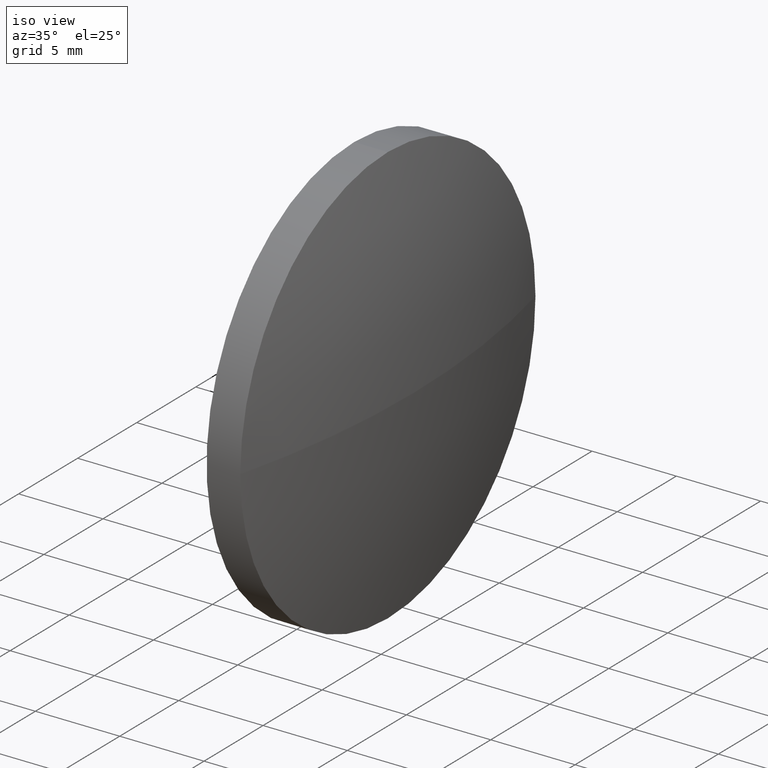
[diagram: clean part render]
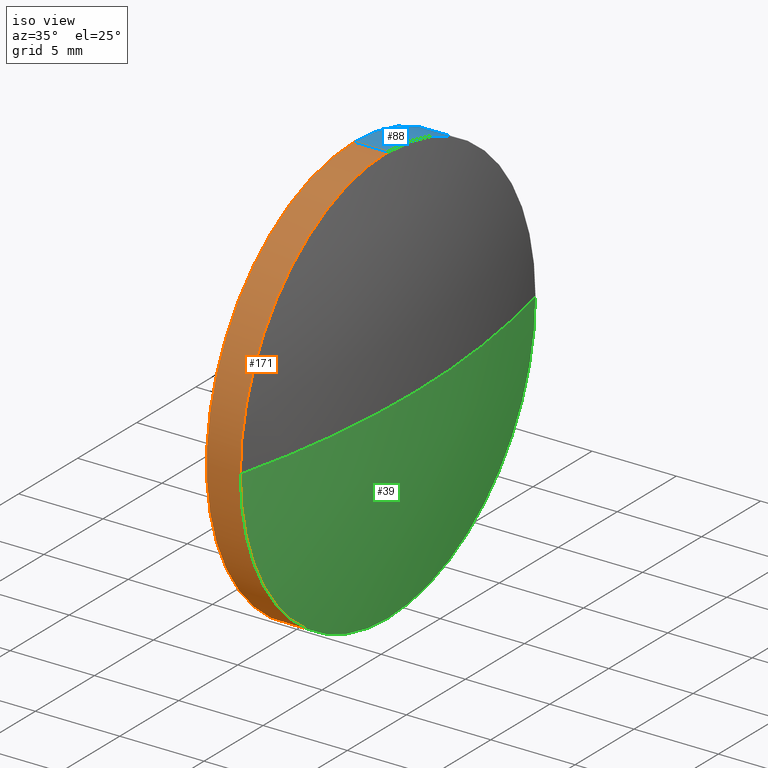
[diagram: same view with three faces highlighted in distinct colors, each labeled with its STEP entity id]
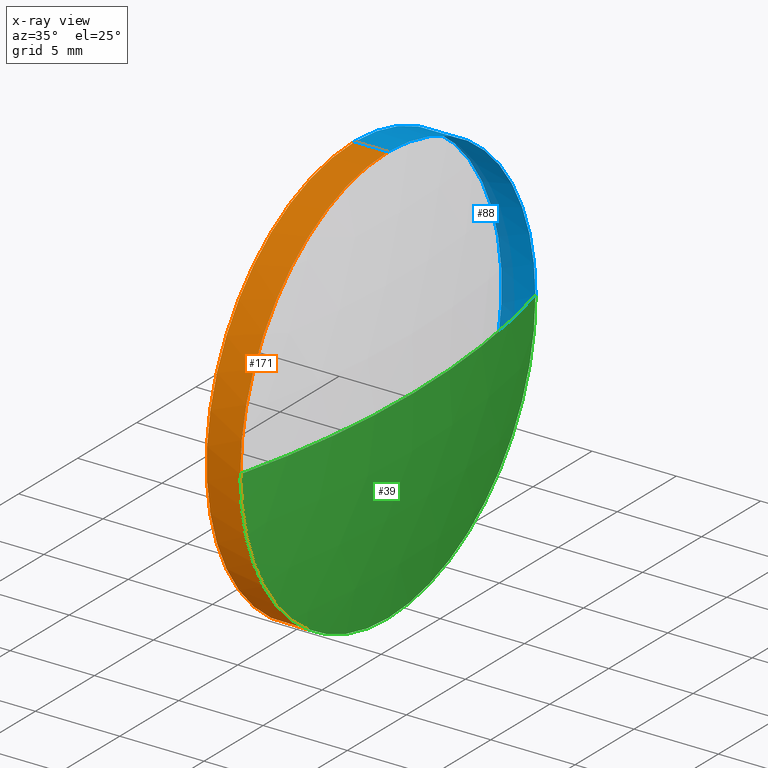
[diagram: x-ray of the same camera — body ghosted, the three highlighted faces saturated]
A machine part, iso view with three faces highlighted in distinct colors.
The next image is the same camera in x-ray (body ghosted, the three faces saturated) — at least one of them is partly hidden behind the body in this view.
Their STEP definitions:

[orange] entity #171 — the highlighted cylindrical surface (partial cylindrical patch) has radius 12.5 mm, axis along (-1, -0, -0).
#2 = ORIENTED_EDGE ( 'NONE', *, *, #127, .T. ) ;
#5 = DIRECTION ( 'NONE',  ( -1.000000000000000000, -0.0000000000000000000, -0.0000000000000000000 ) ) ;
#16 = EDGE_CURVE ( 'NONE', #125, #37, #42, .T. ) ;
#18 = CARTESIAN_POINT ( 'NONE',  ( 56.56002426272561900, 32.62964536423902500, 0.0000000000000000000 ) ) ;
#19 = CARTESIAN_POINT ( 'NONE',  ( 54.53091668428863400, 32.62964536423902500, 12.49999999999999600 ) ) ;
#21 = ORIENTED_EDGE ( 'NONE', *, *, #109, .F. ) ;
#24 = ORIENTED_EDGE ( 'NONE', *, *, #16, .T. ) ;
#37 = VERTEX_POINT ( 'NONE', #177 ) ;
#42 = CIRCLE ( 'NONE', #58, 12.49999999999999600 ) ;
#52 = CARTESIAN_POINT ( 'NONE',  ( 58.56002426272561900, 32.62964536423902500, 0.0000000000000000000 ) ) ;
#54 = CARTESIAN_POINT ( 'NONE',  ( 58.56002426272561900, 32.62964536423902500, -12.49999999999999600 ) ) ;
#58 = AXIS2_PLACEMENT_3D ( 'NONE', #82, #160, #134 ) ;
#60 = DIRECTION ( 'NONE',  ( -1.000000000000000000, -0.0000000000000000000, -0.0000000000000000000 ) ) ;
#61 = CARTESIAN_POINT ( 'NONE',  ( 56.56002426272561900, 32.62964536423902500, 12.49999999999999600 ) ) ;
#67 = AXIS2_PLACEMENT_3D ( 'NONE', #52, #60, #156 ) ;
#72 = ORIENTED_EDGE ( 'NONE', *, *, #180, .T. ) ;
#73 = VERTEX_POINT ( 'NONE', #150 ) ;
#74 = DIRECTION ( 'NONE',  ( 0.0000000000000000000, 0.0000000000000000000, 1.000000000000000000 ) ) ;
#75 = CARTESIAN_POINT ( 'NONE',  ( 54.53091668428863400, 32.62964536423902500, 0.0000000000000000000 ) ) ;
#79 = CIRCLE ( 'NONE', #67, 12.49999999999999600 ) ;
#82 = CARTESIAN_POINT ( 'NONE',  ( 58.56002426272561900, 32.62964536423902500, 0.0000000000000000000 ) ) ;
#89 = VERTEX_POINT ( 'NONE', #115 ) ;
#90 = EDGE_CURVE ( 'NONE', #73, #163, #185, .T. ) ;
#94 = DIRECTION ( 'NONE',  ( 0.0000000000000000000, 0.0000000000000000000, 1.000000000000000000 ) ) ;
#97 = VECTOR ( 'NONE', #117, 1000.000000000000000 ) ;
#104 = CYLINDRICAL_SURFACE ( 'NONE', #151, 12.49999999999999600 ) ;
#108 = AXIS2_PLACEMENT_3D ( 'NONE', #18, #130, #74 ) ;
#109 = EDGE_CURVE ( 'NONE', #125, #73, #144, .T. ) ;
#110 = VECTOR ( 'NONE', #5, 1000.000000000000000 ) ;
#112 = ORIENTED_EDGE ( 'NONE', *, *, #90, .F. ) ;
#115 = CARTESIAN_POINT ( 'NONE',  ( 58.56002426272561900, 32.62964536423902500, 12.49999999999999600 ) ) ;
#117 = DIRECTION ( 'NONE',  ( -1.000000000000000000, -0.0000000000000000000, -0.0000000000000000000 ) ) ;
#125 = VERTEX_POINT ( 'NONE', #54 ) ;
#127 = EDGE_CURVE ( 'NONE', #37, #89, #79, .T. ) ;
#129 = CARTESIAN_POINT ( 'NONE',  ( 54.53091668428863400, 32.62964536423902500, -12.49999999999999600 ) ) ;
#130 = DIRECTION ( 'NONE',  ( -1.000000000000000000, -0.0000000000000000000, -0.0000000000000000000 ) ) ;
#134 = DIRECTION ( 'NONE',  ( 0.0000000000000000000, 0.0000000000000000000, 1.000000000000000000 ) ) ;
#142 = DIRECTION ( 'NONE',  ( -1.000000000000000000, -0.0000000000000000000, -0.0000000000000000000 ) ) ;
#144 = LINE ( 'NONE', #129, #110 ) ;
#149 = EDGE_LOOP ( 'NONE', ( #21, #24, #2, #72, #112 ) ) ;
#150 = CARTESIAN_POINT ( 'NONE',  ( 56.56002426272561900, 32.62964536423902500, -12.49999999999999600 ) ) ;
#151 = AXIS2_PLACEMENT_3D ( 'NONE', #75, #142, #94 ) ;
#156 = DIRECTION ( 'NONE',  ( 0.0000000000000000000, 0.0000000000000000000, 1.000000000000000000 ) ) ;
#160 = DIRECTION ( 'NONE',  ( -1.000000000000000000, -0.0000000000000000000, -0.0000000000000000000 ) ) ;
#163 = VERTEX_POINT ( 'NONE', #61 ) ;
#171 = ADVANCED_FACE ( 'NONE', ( #175 ), #104, .T. ) ;
#175 = FACE_OUTER_BOUND ( 'NONE', #149, .T. ) ;
#177 = CARTESIAN_POINT ( 'NONE',  ( 58.56002426272561900, 20.12964536423902500, -1.530808498934191500E-015 ) ) ;
#180 = EDGE_CURVE ( 'NONE', #89, #163, #182, .T. ) ;
#182 = LINE ( 'NONE', #19, #97 ) ;
#185 = CIRCLE ( 'NONE', #108, 12.49999999999999600 ) ;

[blue] entity #88 — the highlighted cylindrical surface (partial cylindrical patch) has radius 12.5 mm, axis along (-1, -0, -0).
#5 = DIRECTION ( 'NONE',  ( -1.000000000000000000, -0.0000000000000000000, -0.0000000000000000000 ) ) ;
#6 = DIRECTION ( 'NONE',  ( 0.0000000000000000000, 0.0000000000000000000, 1.000000000000000000 ) ) ;
#10 = ORIENTED_EDGE ( 'NONE', *, *, #166, .T. ) ;
#11 = AXIS2_PLACEMENT_3D ( 'NONE', #85, #87, #53 ) ;
#12 = AXIS2_PLACEMENT_3D ( 'NONE', #135, #120, #161 ) ;
#19 = CARTESIAN_POINT ( 'NONE',  ( 54.53091668428863400, 32.62964536423902500, 12.49999999999999600 ) ) ;
#22 = EDGE_CURVE ( 'NONE', #89, #159, #174, .T. ) ;
#28 = ORIENTED_EDGE ( 'NONE', *, *, #180, .F. ) ;
#40 = CIRCLE ( 'NONE', #106, 12.49999999999999600 ) ;
#53 = DIRECTION ( 'NONE',  ( 0.0000000000000000000, 0.0000000000000000000, 1.000000000000000000 ) ) ;
#54 = CARTESIAN_POINT ( 'NONE',  ( 58.56002426272561900, 32.62964536423902500, -12.49999999999999600 ) ) ;
#59 = ORIENTED_EDGE ( 'NONE', *, *, #22, .T. ) ;
#61 = CARTESIAN_POINT ( 'NONE',  ( 56.56002426272561900, 32.62964536423902500, 12.49999999999999600 ) ) ;
#65 = EDGE_LOOP ( 'NONE', ( #10, #96, #154, #28, #59 ) ) ;
#73 = VERTEX_POINT ( 'NONE', #150 ) ;
#85 = CARTESIAN_POINT ( 'NONE',  ( 56.56002426272561900, 32.62964536423902500, 0.0000000000000000000 ) ) ;
#86 = CARTESIAN_POINT ( 'NONE',  ( 58.56002426272561900, 32.62964536423902500, 0.0000000000000000000 ) ) ;
#87 = DIRECTION ( 'NONE',  ( -1.000000000000000000, -0.0000000000000000000, -0.0000000000000000000 ) ) ;
#88 = ADVANCED_FACE ( 'NONE', ( #140 ), #100, .T. ) ;
#89 = VERTEX_POINT ( 'NONE', #115 ) ;
#96 = ORIENTED_EDGE ( 'NONE', *, *, #109, .T. ) ;
#97 = VECTOR ( 'NONE', #117, 1000.000000000000000 ) ;
#98 = CARTESIAN_POINT ( 'NONE',  ( 54.53091668428863400, 32.62964536423902500, 0.0000000000000000000 ) ) ;
#100 = CYLINDRICAL_SURFACE ( 'NONE', #165, 12.49999999999999600 ) ;
#101 = DIRECTION ( 'NONE',  ( 0.0000000000000000000, 0.0000000000000000000, 1.000000000000000000 ) ) ;
#106 = AXIS2_PLACEMENT_3D ( 'NONE', #86, #113, #6 ) ;
#109 = EDGE_CURVE ( 'NONE', #125, #73, #144, .T. ) ;
#110 = VECTOR ( 'NONE', #5, 1000.000000000000000 ) ;
#113 = DIRECTION ( 'NONE',  ( -1.000000000000000000, -0.0000000000000000000, -0.0000000000000000000 ) ) ;
#115 = CARTESIAN_POINT ( 'NONE',  ( 58.56002426272561900, 32.62964536423902500, 12.49999999999999600 ) ) ;
#117 = DIRECTION ( 'NONE',  ( -1.000000000000000000, -0.0000000000000000000, -0.0000000000000000000 ) ) ;
#120 = DIRECTION ( 'NONE',  ( -1.000000000000000000, -0.0000000000000000000, -0.0000000000000000000 ) ) ;
#121 = EDGE_CURVE ( 'NONE', #163, #73, #141, .T. ) ;
#125 = VERTEX_POINT ( 'NONE', #54 ) ;
#128 = CARTESIAN_POINT ( 'NONE',  ( 58.56002426272561900, 45.12964536423902500, 0.0000000000000000000 ) ) ;
#129 = CARTESIAN_POINT ( 'NONE',  ( 54.53091668428863400, 32.62964536423902500, -12.49999999999999600 ) ) ;
#135 = CARTESIAN_POINT ( 'NONE',  ( 58.56002426272561900, 32.62964536423902500, 0.0000000000000000000 ) ) ;
#140 = FACE_OUTER_BOUND ( 'NONE', #65, .T. ) ;
#141 = CIRCLE ( 'NONE', #11, 12.49999999999999600 ) ;
#144 = LINE ( 'NONE', #129, #110 ) ;
#150 = CARTESIAN_POINT ( 'NONE',  ( 56.56002426272561900, 32.62964536423902500, -12.49999999999999600 ) ) ;
#154 = ORIENTED_EDGE ( 'NONE', *, *, #121, .F. ) ;
#159 = VERTEX_POINT ( 'NONE', #128 ) ;
#161 = DIRECTION ( 'NONE',  ( 0.0000000000000000000, 0.0000000000000000000, 1.000000000000000000 ) ) ;
#163 = VERTEX_POINT ( 'NONE', #61 ) ;
#165 = AXIS2_PLACEMENT_3D ( 'NONE', #98, #179, #101 ) ;
#166 = EDGE_CURVE ( 'NONE', #159, #125, #40, .T. ) ;
#174 = CIRCLE ( 'NONE', #12, 12.49999999999999600 ) ;
#179 = DIRECTION ( 'NONE',  ( -1.000000000000000000, -0.0000000000000000000, -0.0000000000000000000 ) ) ;
#180 = EDGE_CURVE ( 'NONE', #89, #163, #182, .T. ) ;
#182 = LINE ( 'NONE', #19, #97 ) ;

[green] entity #39 — the highlighted spherical surface has radius 51.5005 mm.
#6 = DIRECTION ( 'NONE',  ( 0.0000000000000000000, 0.0000000000000000000, 1.000000000000000000 ) ) ;
#8 = CARTESIAN_POINT ( 'NONE',  ( 8.599504782206111000, 32.62964536423902500, 0.0000000000000000000 ) ) ;
#13 = DIRECTION ( 'NONE',  ( 0.0000000000000000000, 1.000000000000000000, 1.224646799147353200E-016 ) ) ;
#16 = EDGE_CURVE ( 'NONE', #125, #37, #42, .T. ) ;
#23 = SPHERICAL_SURFACE ( 'NONE', #102, 51.50051948051950700 ) ;
#32 = EDGE_CURVE ( 'NONE', #91, #37, #70, .T. ) ;
#37 = VERTEX_POINT ( 'NONE', #177 ) ;
#39 = ADVANCED_FACE ( 'NONE', ( #77 ), #23, .T. ) ;
#40 = CIRCLE ( 'NONE', #106, 12.49999999999999600 ) ;
#42 = CIRCLE ( 'NONE', #58, 12.49999999999999600 ) ;
#48 = EDGE_CURVE ( 'NONE', #91, #159, #148, .T. ) ;
#50 = ORIENTED_EDGE ( 'NONE', *, *, #166, .F. ) ;
#54 = CARTESIAN_POINT ( 'NONE',  ( 58.56002426272561900, 32.62964536423902500, -12.49999999999999600 ) ) ;
#57 = DIRECTION ( 'NONE',  ( -0.0000000000000000000, 0.0000000000000000000, -1.000000000000000000 ) ) ;
#58 = AXIS2_PLACEMENT_3D ( 'NONE', #82, #160, #134 ) ;
#62 = CARTESIAN_POINT ( 'NONE',  ( 60.10002426272561800, 32.62964536423902500, 0.0000000000000000000 ) ) ;
#66 = ORIENTED_EDGE ( 'NONE', *, *, #48, .F. ) ;
#68 = DIRECTION ( 'NONE',  ( 0.0000000000000000000, 1.000000000000000000, 0.0000000000000000000 ) ) ;
#70 = CIRCLE ( 'NONE', #152, 51.50051948051950700 ) ;
#77 = FACE_OUTER_BOUND ( 'NONE', #176, .T. ) ;
#82 = CARTESIAN_POINT ( 'NONE',  ( 58.56002426272561900, 32.62964536423902500, 0.0000000000000000000 ) ) ;
#86 = CARTESIAN_POINT ( 'NONE',  ( 58.56002426272561900, 32.62964536423902500, 0.0000000000000000000 ) ) ;
#91 = VERTEX_POINT ( 'NONE', #62 ) ;
#99 = CARTESIAN_POINT ( 'NONE',  ( 8.599504782206111000, 32.62964536423902500, 0.0000000000000000000 ) ) ;
#102 = AXIS2_PLACEMENT_3D ( 'NONE', #124, #57, #68 ) ;
#106 = AXIS2_PLACEMENT_3D ( 'NONE', #86, #113, #6 ) ;
#113 = DIRECTION ( 'NONE',  ( -1.000000000000000000, -0.0000000000000000000, -0.0000000000000000000 ) ) ;
#116 = AXIS2_PLACEMENT_3D ( 'NONE', #8, #123, #162 ) ;
#123 = DIRECTION ( 'NONE',  ( -0.0000000000000000000, 0.0000000000000000000, 1.000000000000000000 ) ) ;
#124 = CARTESIAN_POINT ( 'NONE',  ( 8.599504782206111000, 32.62964536423902500, 0.0000000000000000000 ) ) ;
#125 = VERTEX_POINT ( 'NONE', #54 ) ;
#128 = CARTESIAN_POINT ( 'NONE',  ( 58.56002426272561900, 45.12964536423902500, 0.0000000000000000000 ) ) ;
#134 = DIRECTION ( 'NONE',  ( 0.0000000000000000000, 0.0000000000000000000, 1.000000000000000000 ) ) ;
#136 = ORIENTED_EDGE ( 'NONE', *, *, #16, .F. ) ;
#137 = ORIENTED_EDGE ( 'NONE', *, *, #32, .T. ) ;
#148 = CIRCLE ( 'NONE', #116, 51.50051948051950700 ) ;
#152 = AXIS2_PLACEMENT_3D ( 'NONE', #99, #153, #13 ) ;
#153 = DIRECTION ( 'NONE',  ( 0.0000000000000000000, 1.224646799147353200E-016, -1.000000000000000000 ) ) ;
#159 = VERTEX_POINT ( 'NONE', #128 ) ;
#160 = DIRECTION ( 'NONE',  ( -1.000000000000000000, -0.0000000000000000000, -0.0000000000000000000 ) ) ;
#162 = DIRECTION ( 'NONE',  ( 1.000000000000000000, 0.0000000000000000000, 0.0000000000000000000 ) ) ;
#166 = EDGE_CURVE ( 'NONE', #159, #125, #40, .T. ) ;
#176 = EDGE_LOOP ( 'NONE', ( #66, #137, #136, #50 ) ) ;
#177 = CARTESIAN_POINT ( 'NONE',  ( 58.56002426272561900, 20.12964536423902500, -1.530808498934191500E-015 ) ) ;